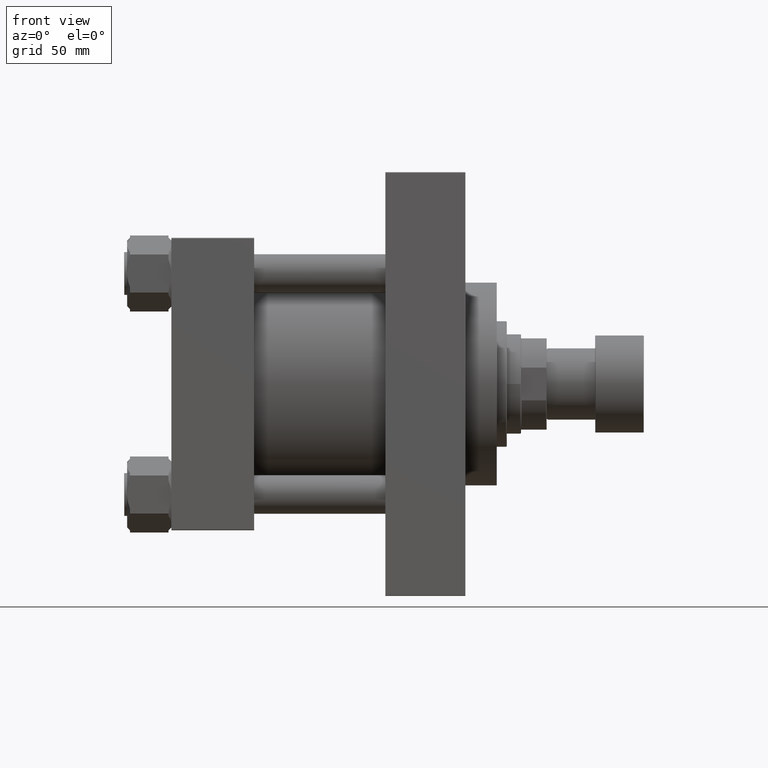
[diagram: clean part render]
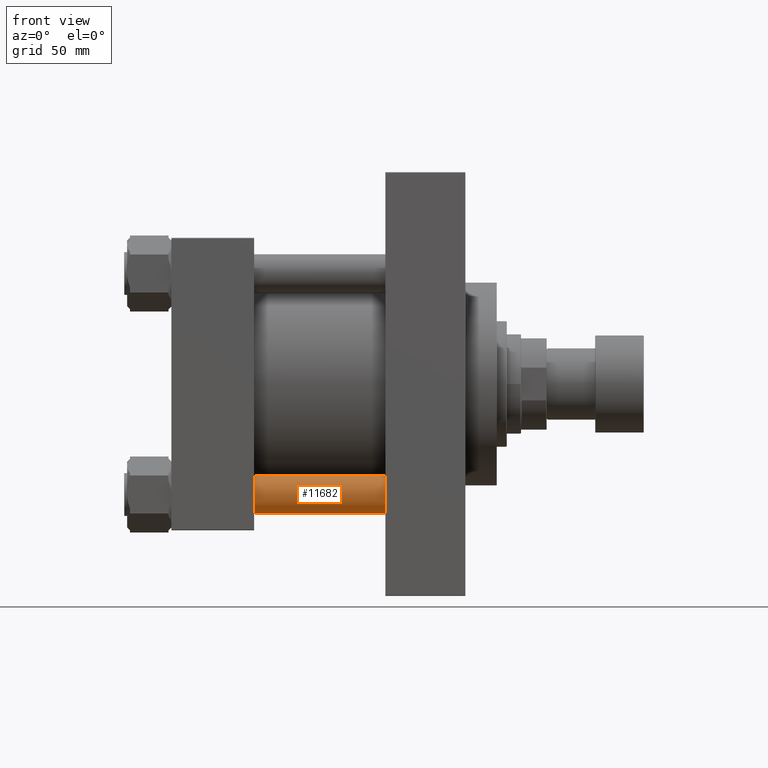
[diagram: same view with one face highlighted and labeled with its STEP entity id]
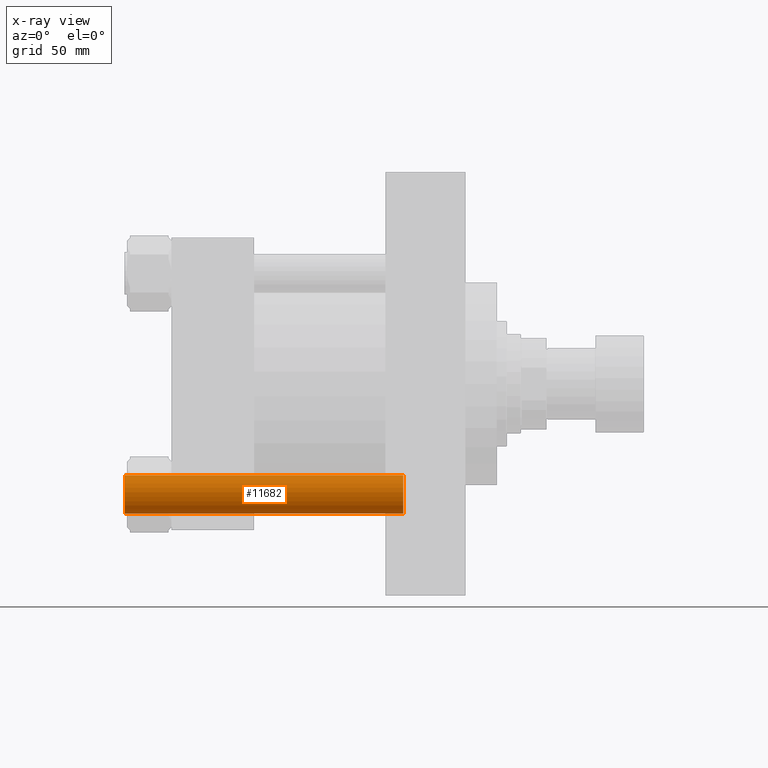
[diagram: x-ray of the same camera — body ghosted, the highlighted face saturated]
A machine part, front view. The second image highlights one B-rep face of the part: STEP entity #11682.
The next image is the same camera in x-ray: the body ghosted, the highlighted face saturated — about 0% of this face is hidden behind the body in this view.
In plain terms, the highlighted cylindrical surface (edge-blend (fillet) strip) has radius 13.5 mm, axis along (1, 0, 0).
Its self-contained STEP definition (entity closure, byte-faithful):
#63 = VERTEX_POINT ( 'NONE', #25519 ) ;
#1033 = LINE ( 'NONE', #30973, #38348 ) ;
#1485 = FACE_OUTER_BOUND ( 'NONE', #45950, .T. ) ;
#4372 = CARTESIAN_POINT ( 'NONE',  ( -13.50000000000000000, 0.000000000000000000, 0.4999999999999726885 ) ) ;
#6468 = DIRECTION ( 'NONE',  ( -0.000000000000000000, -0.000000000000000000, -1.000000000000000000 ) ) ;
#6941 = LINE ( 'NONE', #10119, #24000 ) ;
#7500 = VERTEX_POINT ( 'NONE', #4372 ) ;
#9059 = ORIENTED_EDGE ( 'NONE', *, *, #12399, .T. ) ;
#9957 = ORIENTED_EDGE ( 'NONE', *, *, #35937, .F. ) ;
#10119 = CARTESIAN_POINT ( 'NONE',  ( 13.50000000000000000, 1.653273178848926867E-15, 196.0000000000000000 ) ) ;
#11130 = EDGE_CURVE ( 'NONE', #63, #31006, #6941, .T. ) ;
#11682 = ADVANCED_FACE ( 'NONE', ( #1485 ), #27047, .T. ) ;
#12399 = EDGE_CURVE ( 'NONE', #31006, #7500, #15460, .T. ) ;
#12446 = DIRECTION ( 'NONE',  ( -0.000000000000000000, -0.000000000000000000, 1.000000000000000000 ) ) ;
#12896 = EDGE_CURVE ( 'NONE', #18075, #63, #26347, .T. ) ;
#15460 = CIRCLE ( 'NONE', #20139, 13.50000000000000000 ) ;
#17720 = CARTESIAN_POINT ( 'NONE',  ( 0.000000000000000000, 0.000000000000000000, 195.5000000000000284 ) ) ;
#18075 = VERTEX_POINT ( 'NONE', #43766 ) ;
#20139 = AXIS2_PLACEMENT_3D ( 'NONE', #27295, #12446, #34834 ) ;
#23201 = DIRECTION ( 'NONE',  ( -0.000000000000000000, -0.000000000000000000, -1.000000000000000000 ) ) ;
#24000 = VECTOR ( 'NONE', #6468, 1000.000000000000000 ) ;
#24571 = DIRECTION ( 'NONE',  ( 1.000000000000000000, 0.000000000000000000, 0.000000000000000000 ) ) ;
#25032 = DIRECTION ( 'NONE',  ( 0.000000000000000000, 0.000000000000000000, -1.000000000000000000 ) ) ;
#25519 = CARTESIAN_POINT ( 'NONE',  ( 13.50000000000000000, 1.653273178848926867E-15, 195.5000000000000284 ) ) ;
#26347 = CIRCLE ( 'NONE', #44230, 13.50000000000000000 ) ;
#27047 = CYLINDRICAL_SURFACE ( 'NONE', #40305, 13.50000000000000000 ) ;
#27295 = CARTESIAN_POINT ( 'NONE',  ( 0.000000000000000000, 0.000000000000000000, 0.4999999999999726885 ) ) ;
#27774 = DIRECTION ( 'NONE',  ( -0.000000000000000000, -0.000000000000000000, -1.000000000000000000 ) ) ;
#30973 = CARTESIAN_POINT ( 'NONE',  ( -13.50000000000000000, 0.000000000000000000, 196.0000000000000000 ) ) ;
#31006 = VERTEX_POINT ( 'NONE', #31031 ) ;
#31031 = CARTESIAN_POINT ( 'NONE',  ( 13.50000000000000000, 1.653273178848926867E-15, 0.4999999999999726885 ) ) ;
#34834 = DIRECTION ( 'NONE',  ( 1.000000000000000000, 0.000000000000000000, 0.000000000000000000 ) ) ;
#35937 = EDGE_CURVE ( 'NONE', #18075, #7500, #1033, .T. ) ;
#38348 = VECTOR ( 'NONE', #23201, 1000.000000000000000 ) ;
#38474 = CARTESIAN_POINT ( 'NONE',  ( 0.000000000000000000, 0.000000000000000000, 196.0000000000000000 ) ) ;
#40305 = AXIS2_PLACEMENT_3D ( 'NONE', #38474, #27774, #41886 ) ;
#41886 = DIRECTION ( 'NONE',  ( -1.000000000000000000, 0.000000000000000000, 0.000000000000000000 ) ) ;
#43766 = CARTESIAN_POINT ( 'NONE',  ( -13.50000000000000000, 0.000000000000000000, 195.5000000000000284 ) ) ;
#44066 = ORIENTED_EDGE ( 'NONE', *, *, #12896, .T. ) ;
#44230 = AXIS2_PLACEMENT_3D ( 'NONE', #17720, #25032, #24571 ) ;
#44877 = ORIENTED_EDGE ( 'NONE', *, *, #11130, .T. ) ;
#45950 = EDGE_LOOP ( 'NONE', ( #44066, #44877, #9059, #9957 ) ) ;